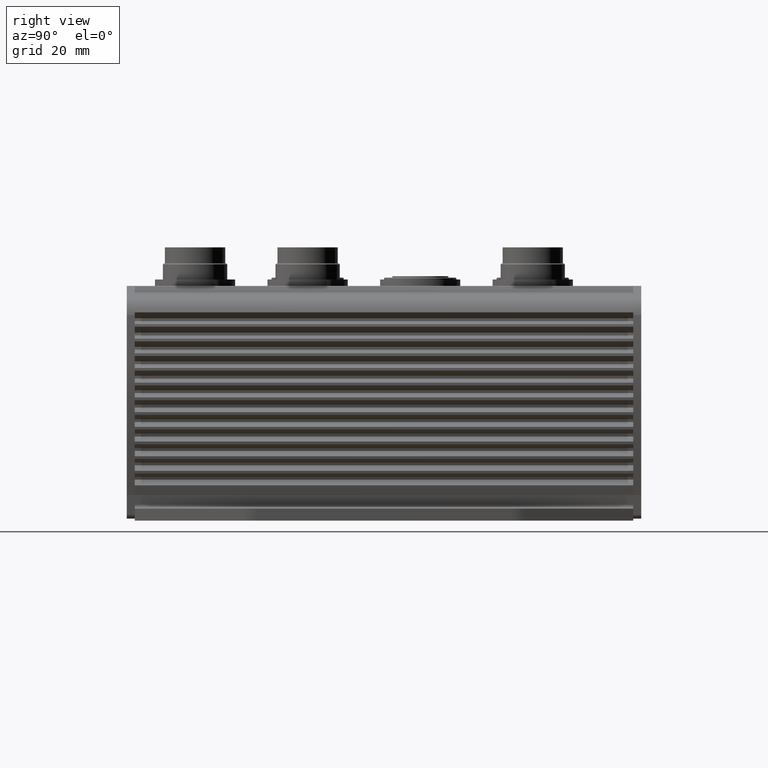
[diagram: clean part render]
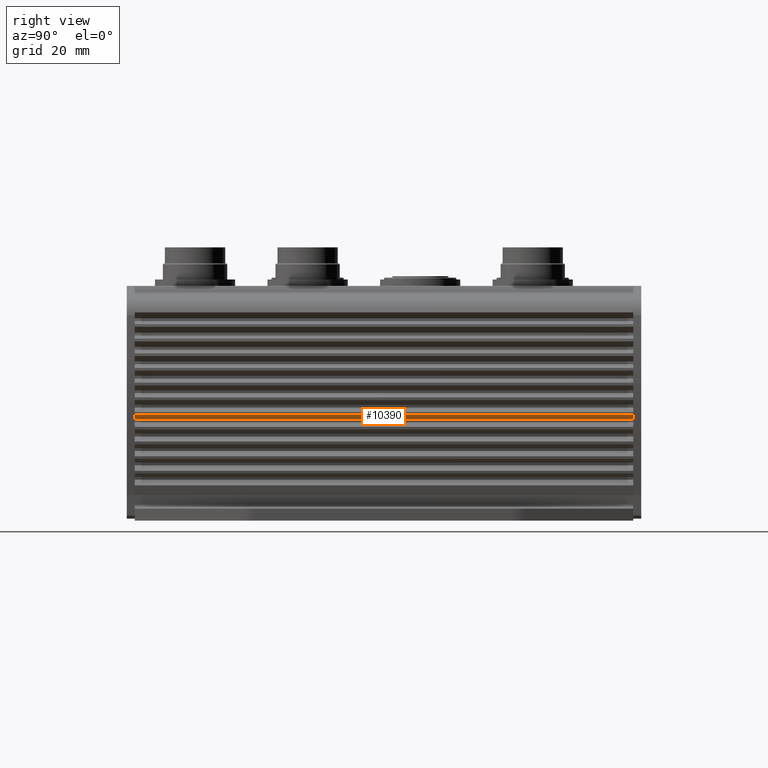
[diagram: same view with one face highlighted and labeled with its STEP entity id]
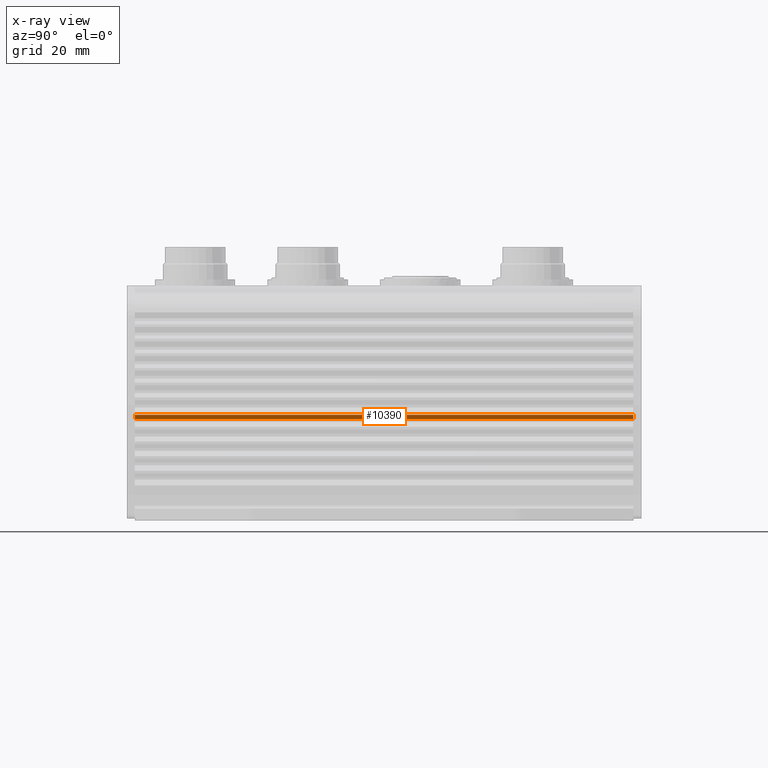
[diagram: x-ray of the same camera — body ghosted, the highlighted face saturated]
A machine part, right view. The second image highlights one B-rep face of the part: STEP entity #10390.
The next image is the same camera in x-ray: the body ghosted, the highlighted face saturated — about 0% of this face is hidden behind the body in this view.
In plain terms, the highlighted planar face has unit normal (-0.4733, 0, 0.8809).
Its self-contained STEP definition (entity closure, byte-faithful):
#4487=CARTESIAN_POINT('',(47.033725931390116,75.000000000000028,-1.620874970121534));
#4488=VERTEX_POINT('',#4487);
#4496=CARTESIAN_POINT('',(45.008863993665386,75.000000000000028,-2.708872535417392));
#4497=VERTEX_POINT('',#4496);
#4498=CARTESIAN_POINT('',(47.033725931390116,75.000000000000028,-1.620874970121534));
#4499=DIRECTION('',(-0.880890738205385,0.0,-0.473319667184845));
#4500=VECTOR('',#4499,2.298652772590080);
#4501=LINE('',#4498,#4500);
#4502=EDGE_CURVE('',#4488,#4497,#4501,.T.);
#6590=CARTESIAN_POINT('',(45.008863993665386,-48.999999999999972,-2.708872535417392));
#6591=VERTEX_POINT('',#6590);
#6598=CARTESIAN_POINT('',(47.033725931390116,-48.999999999999972,-1.620874970121534));
#6599=VERTEX_POINT('',#6598);
#6600=CARTESIAN_POINT('',(45.008863993665386,-48.999999999999972,-2.708872535417392));
#6601=DIRECTION('',(0.880890738205385,0.0,0.473319667184845));
#6602=VECTOR('',#6601,2.298652772590080);
#6603=LINE('',#6600,#6602);
#6604=EDGE_CURVE('',#6591,#6599,#6603,.T.);
#10369=CARTESIAN_POINT('',(45.008863993665386,75.000000000000028,-2.708872535417392));
#10370=DIRECTION('',(-0.473319667184844,0.0,0.880890738205386));
#10371=DIRECTION('',(0.880890738205386,0.0,0.473319667184844));
#10372=AXIS2_PLACEMENT_3D('',#10369,#10370,#10371);
#10373=PLANE('',#10372);
#10374=ORIENTED_EDGE('',*,*,#6604,.F.);
#10375=CARTESIAN_POINT('',(45.008863993665386,75.000000000000028,-2.708872535417392));
#10376=DIRECTION('',(0.0,-1.0,0.0));
#10377=VECTOR('',#10376,124.0);
#10378=LINE('',#10375,#10377);
#10379=EDGE_CURVE('',#4497,#6591,#10378,.T.);
#10380=ORIENTED_EDGE('',*,*,#10379,.F.);
#10381=ORIENTED_EDGE('',*,*,#4502,.F.);
#10382=CARTESIAN_POINT('',(47.033725931390116,-48.999999999999972,-1.620874970121534));
#10383=DIRECTION('',(0.0,1.0,0.0));
#10384=VECTOR('',#10383,124.0);
#10385=LINE('',#10382,#10384);
#10386=EDGE_CURVE('',#6599,#4488,#10385,.T.);
#10387=ORIENTED_EDGE('',*,*,#10386,.F.);
#10388=EDGE_LOOP('',(#10374,#10380,#10381,#10387));
#10389=FACE_OUTER_BOUND('',#10388,.T.);
#10390=ADVANCED_FACE('',(#10389),#10373,.F.);